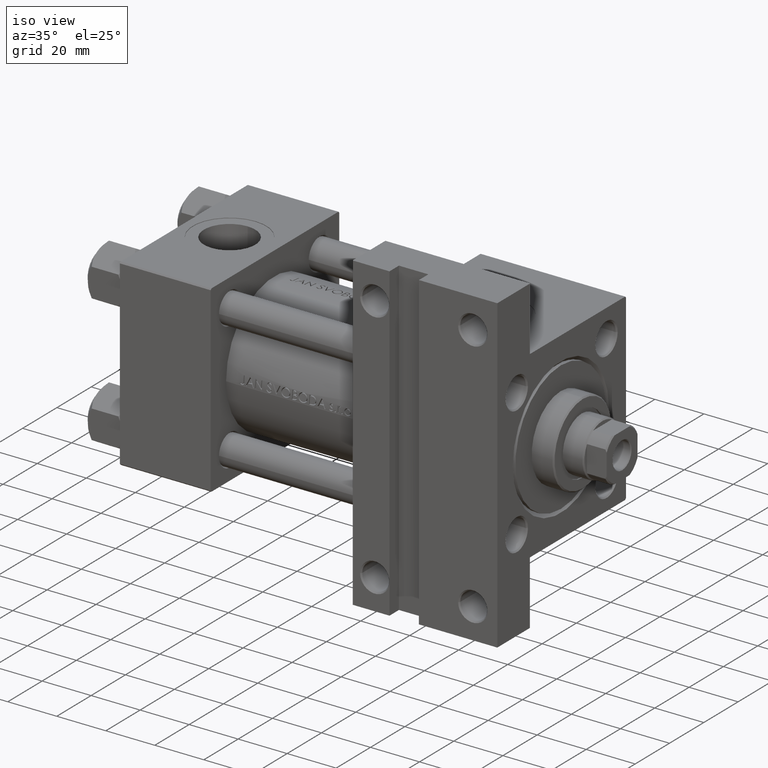
[diagram: clean part render]
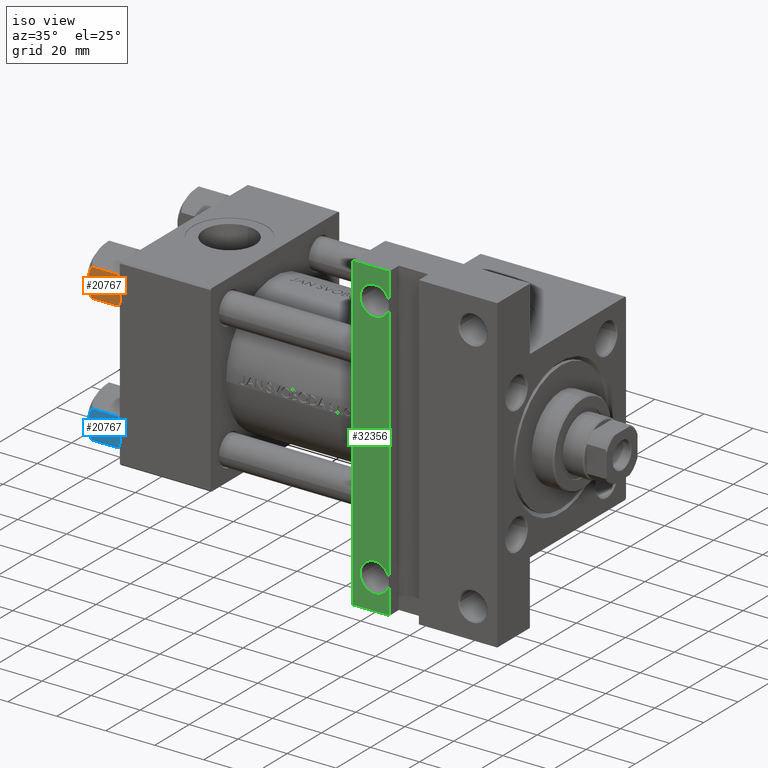
[diagram: same view with three faces highlighted in distinct colors, each labeled with its STEP entity id]
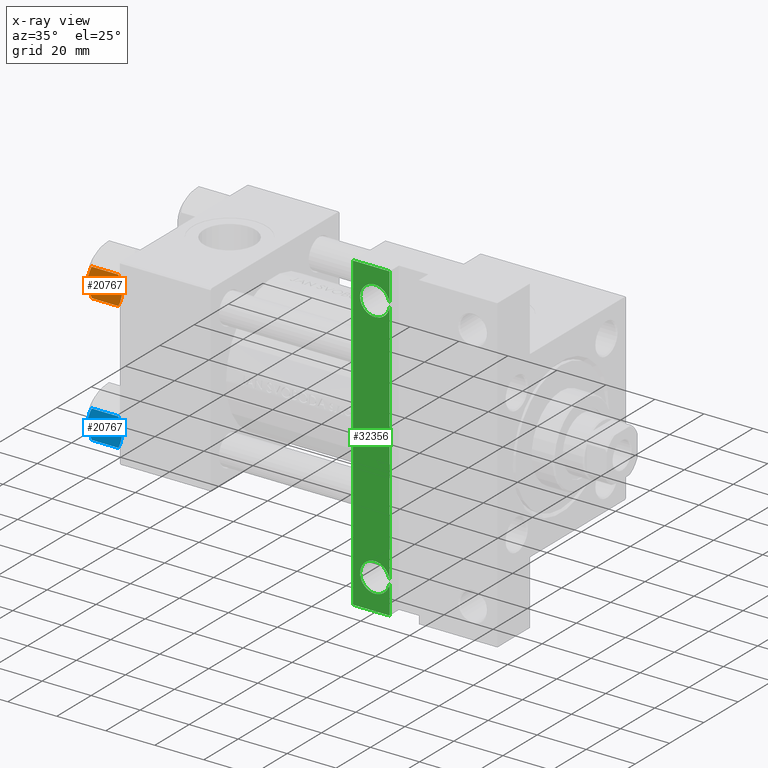
[diagram: x-ray of the same camera — body ghosted, the three highlighted faces saturated]
A machine part, iso view with three faces highlighted in distinct colors.
The next image is the same camera in x-ray (body ghosted, the three faces saturated) — at least one of them is partly hidden behind the body in this view.
Their STEP definitions:

[orange] entity #20767 — the highlighted planar face has unit normal (0, 1, 0).
#291 = CARTESIAN_POINT ( 'NONE',  ( 0.000000000000000000, 10.06321519197518022, 0.000000000000000000 ) ) ;
#1903 = CARTESIAN_POINT ( 'NONE',  ( 0.000000000000000000, 10.06321519197518022, 0.000000000000000000 ) ) ;
#3093 = CARTESIAN_POINT ( 'NONE',  ( -3.958929922320415962, 10.06321519197517844, -13.25786014976460159 ) ) ;
#4525 = CARTESIAN_POINT ( 'NONE',  ( -5.809999999999997833, 10.06321519197518022, -1.556784808024814115 ) ) ;
#5654 = CARTESIAN_POINT ( 'NONE',  ( 5.810000000000000497, 10.06321519197518022, -12.44321519197518455 ) ) ;
#6825 = CARTESIAN_POINT ( 'NONE',  ( -1.772424303831120929, 10.06321519197518022, -0.1338870921722370433 ) ) ;
#7100 = CARTESIAN_POINT ( 'NONE',  ( -5.809999999999997833, 10.06321519197518022, -12.44321519197518633 ) ) ;
#7359 = CARTESIAN_POINT ( 'NONE',  ( -3.474497094393251828, 10.06321519197518022, -13.42730390989572520 ) ) ;
#7807 = CARTESIAN_POINT ( 'NONE',  ( -4.908816193182376608, 10.06321519197518199, -1.106192904616006167 ) ) ;
#9760 = ORIENTED_EDGE ( 'NONE', *, *, #31280, .F. ) ;
#11769 = CARTESIAN_POINT ( 'NONE',  ( 0.000000000000000000, 10.06321519197518022, -14.00000000000000000 ) ) ;
#12614 = VERTEX_POINT ( 'NONE', #1903 ) ;
#13203 = ORIENTED_EDGE ( 'NONE', *, *, #28057, .F. ) ;
#13971 = CARTESIAN_POINT ( 'NONE',  ( 2.508586450168039939, 10.06321519197518022, -13.70242473679676998 ) ) ;
#14733 = DIRECTION ( 'NONE',  ( 0.000000000000000000, -1.000000000000000000, 0.000000000000000000 ) ) ;
#14836 = CARTESIAN_POINT ( 'NONE',  ( -5.809999999999997833, 10.06321519197518022, -1.556784808024814115 ) ) ;
#15272 = VERTEX_POINT ( 'NONE', #5654 ) ;
#15734 = PLANE ( 'NONE',  #47885 ) ;
#15782 = VERTEX_POINT ( 'NONE', #4525 ) ;
#15949 = CARTESIAN_POINT ( 'NONE',  ( 4.900668367960795635, 10.06321519197518199, -1.121556683709773239 ) ) ;
#17954 = EDGE_LOOP ( 'NONE', ( #33739, #31721, #9760, #43979, #13203, #29272 ) ) ;
#18514 = LINE ( 'NONE', #29345, #23151 ) ;
#18524 = FACE_OUTER_BOUND ( 'NONE', #17954, .T. ) ;
#18632 = CARTESIAN_POINT ( 'NONE',  ( -0.2543996698847471039, 10.06321519197517844, 1.789568859311522647E-15 ) ) ;
#19113 = CARTESIAN_POINT ( 'NONE',  ( -2.508586450168038162, 10.06321519197518199, -0.2975752632032285794 ) ) ;
#19244 = VECTOR ( 'NONE', #26632, 1000.000000000000000 ) ;
#19723 = CARTESIAN_POINT ( 'NONE',  ( 5.810000000000000497, 10.06321519197518022, -1.556784808024815892 ) ) ;
#20767 = ADVANCED_FACE ( 'NONE', ( #18524 ), #15734, .F. ) ;
#21280 = CARTESIAN_POINT ( 'NONE',  ( 1.772424303831123815, 10.06321519197518199, -13.86611290782776074 ) ) ;
#21463 = B_SPLINE_CURVE_WITH_KNOTS ( 'NONE', 3,
 ( #19723, #35550, #15949, #46102, #28031, #42316, #31290, #31036 ),
 .UNSPECIFIED., .F., .F.,
 ( 4, 2, 2, 4 ),
 ( 0.01467889604968878811, 0.01619420351931634416, 0.01770951098894390369, 0.02074012592819901579 ),
 .UNSPECIFIED. ) ;
#23151 = VECTOR ( 'NONE', #40623, 1000.000000000000000 ) ;
#23161 = B_SPLINE_CURVE_WITH_KNOTS ( 'NONE', 3,
 ( #7100, #33463, #29491, #3093, #7359, #26455, #48574, #29986 ),
 .UNSPECIFIED., .F., .F.,
 ( 4, 2, 2, 4 ),
 ( 0.01467889604968878464, 0.01619420351931634416, 0.01770951098894390022, 0.02074012592819901579 ),
 .UNSPECIFIED. ) ;
#23376 = VERTEX_POINT ( 'NONE', #48723 ) ;
#23801 = VERTEX_POINT ( 'NONE', #44515 ) ;
#24476 = EDGE_CURVE ( 'NONE', #23376, #15782, #18514, .T. ) ;
#24507 = B_SPLINE_CURVE_WITH_KNOTS ( 'NONE', 3,
 ( #47916, #24823, #28842, #48410, #21280, #13971, #36096, #29323, #25545 ),
 .UNSPECIFIED., .F., .F.,
 ( 4, 2, 1, 2, 4 ),
 ( 0.02074012592819901579, 0.02149589804477577970, 0.02225167016135254361, 0.02376321439450607489, 0.02678630286081313400 ),
 .UNSPECIFIED. ) ;
#24823 = CARTESIAN_POINT ( 'NONE',  ( 0.2543996698847490467, 10.06321519197518199, -14.00000000000000000 ) ) ;
#25545 = CARTESIAN_POINT ( 'NONE',  ( 5.810000000000000497, 10.06321519197518022, -12.44321519197518455 ) ) ;
#26119 = VERTEX_POINT ( 'NONE', #11769 ) ;
#26421 = CARTESIAN_POINT ( 'NONE',  ( -1.018274738099083310, 10.06321519197517667, -0.04822742080070820114 ) ) ;
#26455 = CARTESIAN_POINT ( 'NONE',  ( -2.013954290287964355, 10.06321519197518022, -13.84298883202399999 ) ) ;
#26632 = DIRECTION ( 'NONE',  ( -0.000000000000000000, -0.000000000000000000, 1.000000000000000000 ) ) ;
#28031 = CARTESIAN_POINT ( 'NONE',  ( 3.474497094393252272, 10.06321519197518022, -0.5726960901042741359 ) ) ;
#28057 = EDGE_CURVE ( 'NONE', #15272, #23801, #45694, .T. ) ;
#28842 = CARTESIAN_POINT ( 'NONE',  ( 0.5112014849988890663, 10.06321519197518022, -13.99019602057108713 ) ) ;
#29272 = ORIENTED_EDGE ( 'NONE', *, *, #35837, .F. ) ;
#29323 = CARTESIAN_POINT ( 'NONE',  ( 4.908816193182381937, 10.06321519197518022, -12.89380709538399472 ) ) ;
#29345 = CARTESIAN_POINT ( 'NONE',  ( -5.809999999999997833, 10.06321519197518022, -14.00000000000000000 ) ) ;
#29491 = CARTESIAN_POINT ( 'NONE',  ( -4.900668367960791194, 10.06321519197518199, -12.87844331629023387 ) ) ;
#29986 = CARTESIAN_POINT ( 'NONE',  ( 0.000000000000000000, 10.06321519197518022, -14.00000000000000000 ) ) ;
#31036 = CARTESIAN_POINT ( 'NONE',  ( 0.000000000000000000, 10.06321519197518022, 0.000000000000000000 ) ) ;
#31280 = EDGE_CURVE ( 'NONE', #12614, #15782, #46382, .T. ) ;
#31290 = CARTESIAN_POINT ( 'NONE',  ( 1.020132157807626561, 10.06321519197517844, 1.504330514323637599E-15 ) ) ;
#31721 = ORIENTED_EDGE ( 'NONE', *, *, #24476, .T. ) ;
#33463 = CARTESIAN_POINT ( 'NONE',  ( -5.359707691559671083, 10.06321519197517844, -12.66836134619534704 ) ) ;
#33739 = ORIENTED_EDGE ( 'NONE', *, *, #39259, .F. ) ;
#35550 = CARTESIAN_POINT ( 'NONE',  ( 5.359707691559672860, 10.06321519197517844, -1.331638653804651629 ) ) ;
#35837 = EDGE_CURVE ( 'NONE', #26119, #15272, #24507, .T. ) ;
#36014 = EDGE_CURVE ( 'NONE', #23801, #12614, #21463, .T. ) ;
#36096 = CARTESIAN_POINT ( 'NONE',  ( 3.960942496020604331, 10.06321519197518022, -13.28842716763896092 ) ) ;
#37940 = CARTESIAN_POINT ( 'NONE',  ( -3.960942496020600778, 10.06321519197518199, -0.7115728323610410744 ) ) ;
#38649 = CARTESIAN_POINT ( 'NONE',  ( 5.810000000000000497, 10.06321519197518022, -14.00000000000000000 ) ) ;
#39259 = EDGE_CURVE ( 'NONE', #23376, #26119, #23161, .T. ) ;
#40623 = DIRECTION ( 'NONE',  ( -0.000000000000000000, -0.000000000000000000, 1.000000000000000000 ) ) ;
#42316 = CARTESIAN_POINT ( 'NONE',  ( 2.013954290287966575, 10.06321519197518022, -0.1570111679759973733 ) ) ;
#43979 = ORIENTED_EDGE ( 'NONE', *, *, #36014, .F. ) ;
#44515 = CARTESIAN_POINT ( 'NONE',  ( 5.810000000000000497, 10.06321519197518022, -1.556784808024815892 ) ) ;
#45375 = DIRECTION ( 'NONE',  ( 0.000000000000000000, -0.000000000000000000, -1.000000000000000000 ) ) ;
#45694 = LINE ( 'NONE', #38649, #19244 ) ;
#45996 = CARTESIAN_POINT ( 'NONE',  ( -0.5112014849988875120, 10.06321519197518199, -0.009803979428912690947 ) ) ;
#46102 = CARTESIAN_POINT ( 'NONE',  ( 3.958929922320420403, 10.06321519197517844, -0.7421398502353995230 ) ) ;
#46382 = B_SPLINE_CURVE_WITH_KNOTS ( 'NONE', 3,
 ( #291, #18632, #45996, #26421, #6825, #19113, #37940, #7807, #14836 ),
 .UNSPECIFIED., .F., .F.,
 ( 4, 2, 1, 2, 4 ),
 ( 0.02074012592819901579, 0.02149589804477577970, 0.02225167016135254361, 0.02376321439450607489, 0.02678630286081313400 ),
 .UNSPECIFIED. ) ;
#47885 = AXIS2_PLACEMENT_3D ( 'NONE', #49179, #14733, #45375 ) ;
#47916 = CARTESIAN_POINT ( 'NONE',  ( 0.000000000000000000, 10.06321519197518022, -14.00000000000000000 ) ) ;
#48410 = CARTESIAN_POINT ( 'NONE',  ( 1.018274738099085530, 10.06321519197517844, -13.95177257919929126 ) ) ;
#48574 = CARTESIAN_POINT ( 'NONE',  ( -1.020132157807624340, 10.06321519197517844, -14.00000000000000000 ) ) ;
#48723 = CARTESIAN_POINT ( 'NONE',  ( -5.809999999999997833, 10.06321519197518022, -12.44321519197518633 ) ) ;
#49179 = CARTESIAN_POINT ( 'NONE',  ( -5.809999999999997833, 10.06321519197518022, -14.00000000000000000 ) ) ;

[blue] entity #20767 — the highlighted planar face has unit normal (0, 1, 0).
#291 = CARTESIAN_POINT ( 'NONE',  ( 0.000000000000000000, 10.06321519197518022, 0.000000000000000000 ) ) ;
#1903 = CARTESIAN_POINT ( 'NONE',  ( 0.000000000000000000, 10.06321519197518022, 0.000000000000000000 ) ) ;
#3093 = CARTESIAN_POINT ( 'NONE',  ( -3.958929922320415962, 10.06321519197517844, -13.25786014976460159 ) ) ;
#4525 = CARTESIAN_POINT ( 'NONE',  ( -5.809999999999997833, 10.06321519197518022, -1.556784808024814115 ) ) ;
#5654 = CARTESIAN_POINT ( 'NONE',  ( 5.810000000000000497, 10.06321519197518022, -12.44321519197518455 ) ) ;
#6825 = CARTESIAN_POINT ( 'NONE',  ( -1.772424303831120929, 10.06321519197518022, -0.1338870921722370433 ) ) ;
#7100 = CARTESIAN_POINT ( 'NONE',  ( -5.809999999999997833, 10.06321519197518022, -12.44321519197518633 ) ) ;
#7359 = CARTESIAN_POINT ( 'NONE',  ( -3.474497094393251828, 10.06321519197518022, -13.42730390989572520 ) ) ;
#7807 = CARTESIAN_POINT ( 'NONE',  ( -4.908816193182376608, 10.06321519197518199, -1.106192904616006167 ) ) ;
#9760 = ORIENTED_EDGE ( 'NONE', *, *, #31280, .F. ) ;
#11769 = CARTESIAN_POINT ( 'NONE',  ( 0.000000000000000000, 10.06321519197518022, -14.00000000000000000 ) ) ;
#12614 = VERTEX_POINT ( 'NONE', #1903 ) ;
#13203 = ORIENTED_EDGE ( 'NONE', *, *, #28057, .F. ) ;
#13971 = CARTESIAN_POINT ( 'NONE',  ( 2.508586450168039939, 10.06321519197518022, -13.70242473679676998 ) ) ;
#14733 = DIRECTION ( 'NONE',  ( 0.000000000000000000, -1.000000000000000000, 0.000000000000000000 ) ) ;
#14836 = CARTESIAN_POINT ( 'NONE',  ( -5.809999999999997833, 10.06321519197518022, -1.556784808024814115 ) ) ;
#15272 = VERTEX_POINT ( 'NONE', #5654 ) ;
#15734 = PLANE ( 'NONE',  #47885 ) ;
#15782 = VERTEX_POINT ( 'NONE', #4525 ) ;
#15949 = CARTESIAN_POINT ( 'NONE',  ( 4.900668367960795635, 10.06321519197518199, -1.121556683709773239 ) ) ;
#17954 = EDGE_LOOP ( 'NONE', ( #33739, #31721, #9760, #43979, #13203, #29272 ) ) ;
#18514 = LINE ( 'NONE', #29345, #23151 ) ;
#18524 = FACE_OUTER_BOUND ( 'NONE', #17954, .T. ) ;
#18632 = CARTESIAN_POINT ( 'NONE',  ( -0.2543996698847471039, 10.06321519197517844, 1.789568859311522647E-15 ) ) ;
#19113 = CARTESIAN_POINT ( 'NONE',  ( -2.508586450168038162, 10.06321519197518199, -0.2975752632032285794 ) ) ;
#19244 = VECTOR ( 'NONE', #26632, 1000.000000000000000 ) ;
#19723 = CARTESIAN_POINT ( 'NONE',  ( 5.810000000000000497, 10.06321519197518022, -1.556784808024815892 ) ) ;
#20767 = ADVANCED_FACE ( 'NONE', ( #18524 ), #15734, .F. ) ;
#21280 = CARTESIAN_POINT ( 'NONE',  ( 1.772424303831123815, 10.06321519197518199, -13.86611290782776074 ) ) ;
#21463 = B_SPLINE_CURVE_WITH_KNOTS ( 'NONE', 3,
 ( #19723, #35550, #15949, #46102, #28031, #42316, #31290, #31036 ),
 .UNSPECIFIED., .F., .F.,
 ( 4, 2, 2, 4 ),
 ( 0.01467889604968878811, 0.01619420351931634416, 0.01770951098894390369, 0.02074012592819901579 ),
 .UNSPECIFIED. ) ;
#23151 = VECTOR ( 'NONE', #40623, 1000.000000000000000 ) ;
#23161 = B_SPLINE_CURVE_WITH_KNOTS ( 'NONE', 3,
 ( #7100, #33463, #29491, #3093, #7359, #26455, #48574, #29986 ),
 .UNSPECIFIED., .F., .F.,
 ( 4, 2, 2, 4 ),
 ( 0.01467889604968878464, 0.01619420351931634416, 0.01770951098894390022, 0.02074012592819901579 ),
 .UNSPECIFIED. ) ;
#23376 = VERTEX_POINT ( 'NONE', #48723 ) ;
#23801 = VERTEX_POINT ( 'NONE', #44515 ) ;
#24476 = EDGE_CURVE ( 'NONE', #23376, #15782, #18514, .T. ) ;
#24507 = B_SPLINE_CURVE_WITH_KNOTS ( 'NONE', 3,
 ( #47916, #24823, #28842, #48410, #21280, #13971, #36096, #29323, #25545 ),
 .UNSPECIFIED., .F., .F.,
 ( 4, 2, 1, 2, 4 ),
 ( 0.02074012592819901579, 0.02149589804477577970, 0.02225167016135254361, 0.02376321439450607489, 0.02678630286081313400 ),
 .UNSPECIFIED. ) ;
#24823 = CARTESIAN_POINT ( 'NONE',  ( 0.2543996698847490467, 10.06321519197518199, -14.00000000000000000 ) ) ;
#25545 = CARTESIAN_POINT ( 'NONE',  ( 5.810000000000000497, 10.06321519197518022, -12.44321519197518455 ) ) ;
#26119 = VERTEX_POINT ( 'NONE', #11769 ) ;
#26421 = CARTESIAN_POINT ( 'NONE',  ( -1.018274738099083310, 10.06321519197517667, -0.04822742080070820114 ) ) ;
#26455 = CARTESIAN_POINT ( 'NONE',  ( -2.013954290287964355, 10.06321519197518022, -13.84298883202399999 ) ) ;
#26632 = DIRECTION ( 'NONE',  ( -0.000000000000000000, -0.000000000000000000, 1.000000000000000000 ) ) ;
#28031 = CARTESIAN_POINT ( 'NONE',  ( 3.474497094393252272, 10.06321519197518022, -0.5726960901042741359 ) ) ;
#28057 = EDGE_CURVE ( 'NONE', #15272, #23801, #45694, .T. ) ;
#28842 = CARTESIAN_POINT ( 'NONE',  ( 0.5112014849988890663, 10.06321519197518022, -13.99019602057108713 ) ) ;
#29272 = ORIENTED_EDGE ( 'NONE', *, *, #35837, .F. ) ;
#29323 = CARTESIAN_POINT ( 'NONE',  ( 4.908816193182381937, 10.06321519197518022, -12.89380709538399472 ) ) ;
#29345 = CARTESIAN_POINT ( 'NONE',  ( -5.809999999999997833, 10.06321519197518022, -14.00000000000000000 ) ) ;
#29491 = CARTESIAN_POINT ( 'NONE',  ( -4.900668367960791194, 10.06321519197518199, -12.87844331629023387 ) ) ;
#29986 = CARTESIAN_POINT ( 'NONE',  ( 0.000000000000000000, 10.06321519197518022, -14.00000000000000000 ) ) ;
#31036 = CARTESIAN_POINT ( 'NONE',  ( 0.000000000000000000, 10.06321519197518022, 0.000000000000000000 ) ) ;
#31280 = EDGE_CURVE ( 'NONE', #12614, #15782, #46382, .T. ) ;
#31290 = CARTESIAN_POINT ( 'NONE',  ( 1.020132157807626561, 10.06321519197517844, 1.504330514323637599E-15 ) ) ;
#31721 = ORIENTED_EDGE ( 'NONE', *, *, #24476, .T. ) ;
#33463 = CARTESIAN_POINT ( 'NONE',  ( -5.359707691559671083, 10.06321519197517844, -12.66836134619534704 ) ) ;
#33739 = ORIENTED_EDGE ( 'NONE', *, *, #39259, .F. ) ;
#35550 = CARTESIAN_POINT ( 'NONE',  ( 5.359707691559672860, 10.06321519197517844, -1.331638653804651629 ) ) ;
#35837 = EDGE_CURVE ( 'NONE', #26119, #15272, #24507, .T. ) ;
#36014 = EDGE_CURVE ( 'NONE', #23801, #12614, #21463, .T. ) ;
#36096 = CARTESIAN_POINT ( 'NONE',  ( 3.960942496020604331, 10.06321519197518022, -13.28842716763896092 ) ) ;
#37940 = CARTESIAN_POINT ( 'NONE',  ( -3.960942496020600778, 10.06321519197518199, -0.7115728323610410744 ) ) ;
#38649 = CARTESIAN_POINT ( 'NONE',  ( 5.810000000000000497, 10.06321519197518022, -14.00000000000000000 ) ) ;
#39259 = EDGE_CURVE ( 'NONE', #23376, #26119, #23161, .T. ) ;
#40623 = DIRECTION ( 'NONE',  ( -0.000000000000000000, -0.000000000000000000, 1.000000000000000000 ) ) ;
#42316 = CARTESIAN_POINT ( 'NONE',  ( 2.013954290287966575, 10.06321519197518022, -0.1570111679759973733 ) ) ;
#43979 = ORIENTED_EDGE ( 'NONE', *, *, #36014, .F. ) ;
#44515 = CARTESIAN_POINT ( 'NONE',  ( 5.810000000000000497, 10.06321519197518022, -1.556784808024815892 ) ) ;
#45375 = DIRECTION ( 'NONE',  ( 0.000000000000000000, -0.000000000000000000, -1.000000000000000000 ) ) ;
#45694 = LINE ( 'NONE', #38649, #19244 ) ;
#45996 = CARTESIAN_POINT ( 'NONE',  ( -0.5112014849988875120, 10.06321519197518199, -0.009803979428912690947 ) ) ;
#46102 = CARTESIAN_POINT ( 'NONE',  ( 3.958929922320420403, 10.06321519197517844, -0.7421398502353995230 ) ) ;
#46382 = B_SPLINE_CURVE_WITH_KNOTS ( 'NONE', 3,
 ( #291, #18632, #45996, #26421, #6825, #19113, #37940, #7807, #14836 ),
 .UNSPECIFIED., .F., .F.,
 ( 4, 2, 1, 2, 4 ),
 ( 0.02074012592819901579, 0.02149589804477577970, 0.02225167016135254361, 0.02376321439450607489, 0.02678630286081313400 ),
 .UNSPECIFIED. ) ;
#47885 = AXIS2_PLACEMENT_3D ( 'NONE', #49179, #14733, #45375 ) ;
#47916 = CARTESIAN_POINT ( 'NONE',  ( 0.000000000000000000, 10.06321519197518022, -14.00000000000000000 ) ) ;
#48410 = CARTESIAN_POINT ( 'NONE',  ( 1.018274738099085530, 10.06321519197517844, -13.95177257919929126 ) ) ;
#48574 = CARTESIAN_POINT ( 'NONE',  ( -1.020132157807624340, 10.06321519197517844, -14.00000000000000000 ) ) ;
#48723 = CARTESIAN_POINT ( 'NONE',  ( -5.809999999999997833, 10.06321519197518022, -12.44321519197518633 ) ) ;
#49179 = CARTESIAN_POINT ( 'NONE',  ( -5.809999999999997833, 10.06321519197518022, -14.00000000000000000 ) ) ;

[green] entity #32356 — the highlighted planar face has unit normal (0, -1, 0).
#919 = CARTESIAN_POINT ( 'NONE',  ( 103.9999999999999574, -50.99999999999999289, -37.50000000000000000 ) ) ;
#2874 = VERTEX_POINT ( 'NONE', #8045 ) ;
#3063 = CARTESIAN_POINT ( 'NONE',  ( 110.0000000000000000, 63.50000000000000000, -37.50000000000000000 ) ) ;
#4385 = VERTEX_POINT ( 'NONE', #28044 ) ;
#4881 = CARTESIAN_POINT ( 'NONE',  ( 110.0000000000000000, -63.50000000000000000, -37.50000000000000000 ) ) ;
#5389 = VERTEX_POINT ( 'NONE', #6662 ) ;
#6662 = CARTESIAN_POINT ( 'NONE',  ( 110.0000000000000000, -63.50000000000000000, -37.50000000000000000 ) ) ;
#6664 = VECTOR ( 'NONE', #36911, 1000.000000000000000 ) ;
#7153 = EDGE_CURVE ( 'NONE', #27037, #25825, #32225, .T. ) ;
#7470 = CARTESIAN_POINT ( 'NONE',  ( 98.00049999999993133, 50.99999999999999289, -37.50000000000000000 ) ) ;
#7568 = EDGE_LOOP ( 'NONE', ( #28635, #14528 ) ) ;
#8045 = CARTESIAN_POINT ( 'NONE',  ( 109.9994999999999692, -50.99999999999999289, -37.50000000000000000 ) ) ;
#8570 = FACE_BOUND ( 'NONE', #7568, .T. ) ;
#9418 = VERTEX_POINT ( 'NONE', #43921 ) ;
#10547 = AXIS2_PLACEMENT_3D ( 'NONE', #17707, #29510, #26479 ) ;
#10636 = CARTESIAN_POINT ( 'NONE',  ( 95.00000000000000000, 37.50000000000000000, -37.50000000000000000 ) ) ;
#11112 = LINE ( 'NONE', #10636, #37337 ) ;
#11966 = ORIENTED_EDGE ( 'NONE', *, *, #39713, .T. ) ;
#12339 = CARTESIAN_POINT ( 'NONE',  ( 154.0000000000000000, 37.50000000000000000, -37.50000000000000000 ) ) ;
#12856 = AXIS2_PLACEMENT_3D ( 'NONE', #12339, #16857, #47004 ) ;
#13090 = FACE_OUTER_BOUND ( 'NONE', #37438, .T. ) ;
#13456 = EDGE_CURVE ( 'NONE', #2874, #9418, #34273, .T. ) ;
#14528 = ORIENTED_EDGE ( 'NONE', *, *, #13456, .T. ) ;
#14780 = DIRECTION ( 'NONE',  ( -1.000000000000000000, 0.000000000000000000, 0.000000000000000000 ) ) ;
#15216 = AXIS2_PLACEMENT_3D ( 'NONE', #34119, #49231, #14780 ) ;
#15306 = EDGE_CURVE ( 'NONE', #28532, #4385, #11112, .T. ) ;
#15415 = DIRECTION ( 'NONE',  ( -1.000000000000000000, 4.704334850106596780E-16, -0.000000000000000000 ) ) ;
#15431 = ORIENTED_EDGE ( 'NONE', *, *, #22721, .T. ) ;
#16857 = DIRECTION ( 'NONE',  ( 0.000000000000000000, 0.000000000000000000, -1.000000000000000000 ) ) ;
#17707 = CARTESIAN_POINT ( 'NONE',  ( 103.9999999999999574, 50.99999999999999289, -37.50000000000000000 ) ) ;
#18599 = DIRECTION ( 'NONE',  ( 1.000000000000000000, 0.000000000000000000, 0.000000000000000000 ) ) ;
#19854 = VECTOR ( 'NONE', #15415, 1000.000000000000000 ) ;
#20131 = PLANE ( 'NONE',  #12856 ) ;
#20181 = AXIS2_PLACEMENT_3D ( 'NONE', #35095, #39617, #46404 ) ;
#20731 = DIRECTION ( 'NONE',  ( -0.000000000000000000, -0.000000000000000000, 1.000000000000000000 ) ) ;
#22721 = EDGE_CURVE ( 'NONE', #5389, #4385, #34241, .T. ) ;
#22724 = VECTOR ( 'NONE', #18599, 1000.000000000000000 ) ;
#25825 = VERTEX_POINT ( 'NONE', #45756 ) ;
#26387 = CARTESIAN_POINT ( 'NONE',  ( 95.00000000000000000, 63.50000000000000000, -37.50000000000000000 ) ) ;
#26479 = DIRECTION ( 'NONE',  ( -1.000000000000000000, 0.000000000000000000, 0.000000000000000000 ) ) ;
#27037 = VERTEX_POINT ( 'NONE', #7470 ) ;
#27432 = FACE_BOUND ( 'NONE', #34996, .T. ) ;
#27826 = EDGE_CURVE ( 'NONE', #9418, #2874, #44886, .T. ) ;
#28044 = CARTESIAN_POINT ( 'NONE',  ( 94.99999999999998579, -63.50000000000000000, -37.50000000000000000 ) ) ;
#28532 = VERTEX_POINT ( 'NONE', #35523 ) ;
#28635 = ORIENTED_EDGE ( 'NONE', *, *, #27826, .T. ) ;
#29341 = ORIENTED_EDGE ( 'NONE', *, *, #15306, .F. ) ;
#29510 = DIRECTION ( 'NONE',  ( -0.000000000000000000, -0.000000000000000000, 1.000000000000000000 ) ) ;
#31552 = DIRECTION ( 'NONE',  ( -1.000000000000000000, 0.000000000000000000, 0.000000000000000000 ) ) ;
#32225 = CIRCLE ( 'NONE', #10547, 5.999500000000018929 ) ;
#32356 = ADVANCED_FACE ( 'NONE', ( #13090, #27432, #8570 ), #20131, .T. ) ;
#32419 = LINE ( 'NONE', #4881, #6664 ) ;
#34119 = CARTESIAN_POINT ( 'NONE',  ( 103.9999999999999574, -50.99999999999999289, -37.50000000000000000 ) ) ;
#34241 = LINE ( 'NONE', #41519, #19854 ) ;
#34273 = CIRCLE ( 'NONE', #35113, 5.999500000000018929 ) ;
#34996 = EDGE_LOOP ( 'NONE', ( #47185, #46170 ) ) ;
#35095 = CARTESIAN_POINT ( 'NONE',  ( 103.9999999999999574, 50.99999999999999289, -37.50000000000000000 ) ) ;
#35113 = AXIS2_PLACEMENT_3D ( 'NONE', #919, #20731, #31552 ) ;
#35523 = CARTESIAN_POINT ( 'NONE',  ( 95.00000000000000000, 63.50000000000000000, -37.50000000000000000 ) ) ;
#36911 = DIRECTION ( 'NONE',  ( 0.000000000000000000, 1.000000000000000000, 0.000000000000000000 ) ) ;
#37337 = VECTOR ( 'NONE', #44535, 1000.000000000000000 ) ;
#37438 = EDGE_LOOP ( 'NONE', ( #43611, #15431, #29341, #11966 ) ) ;
#37657 = LINE ( 'NONE', #26387, #22724 ) ;
#38322 = EDGE_CURVE ( 'NONE', #5389, #49520, #32419, .T. ) ;
#39617 = DIRECTION ( 'NONE',  ( -0.000000000000000000, -0.000000000000000000, 1.000000000000000000 ) ) ;
#39713 = EDGE_CURVE ( 'NONE', #28532, #49520, #37657, .T. ) ;
#41519 = CARTESIAN_POINT ( 'NONE',  ( 94.99999999999998579, -63.50000000000000000, -37.50000000000000000 ) ) ;
#43429 = CIRCLE ( 'NONE', #20181, 5.999500000000018929 ) ;
#43611 = ORIENTED_EDGE ( 'NONE', *, *, #38322, .F. ) ;
#43921 = CARTESIAN_POINT ( 'NONE',  ( 98.00049999999993133, -50.99999999999999289, -37.50000000000000000 ) ) ;
#44535 = DIRECTION ( 'NONE',  ( 0.000000000000000000, -1.000000000000000000, 0.000000000000000000 ) ) ;
#44886 = CIRCLE ( 'NONE', #15216, 5.999500000000018929 ) ;
#45756 = CARTESIAN_POINT ( 'NONE',  ( 109.9994999999999692, 50.99999999999999289, -37.50000000000000000 ) ) ;
#46170 = ORIENTED_EDGE ( 'NONE', *, *, #48072, .T. ) ;
#46404 = DIRECTION ( 'NONE',  ( -1.000000000000000000, 0.000000000000000000, 0.000000000000000000 ) ) ;
#47004 = DIRECTION ( 'NONE',  ( -1.000000000000000000, 0.000000000000000000, -0.000000000000000000 ) ) ;
#47185 = ORIENTED_EDGE ( 'NONE', *, *, #7153, .T. ) ;
#48072 = EDGE_CURVE ( 'NONE', #25825, #27037, #43429, .T. ) ;
#49231 = DIRECTION ( 'NONE',  ( -0.000000000000000000, -0.000000000000000000, 1.000000000000000000 ) ) ;
#49520 = VERTEX_POINT ( 'NONE', #3063 ) ;